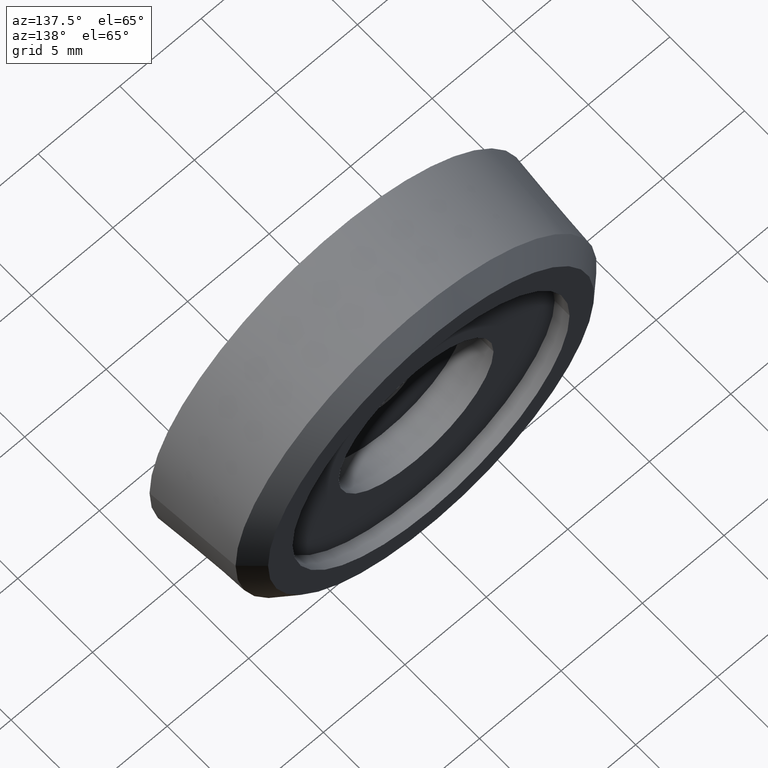
[diagram: clean part render]
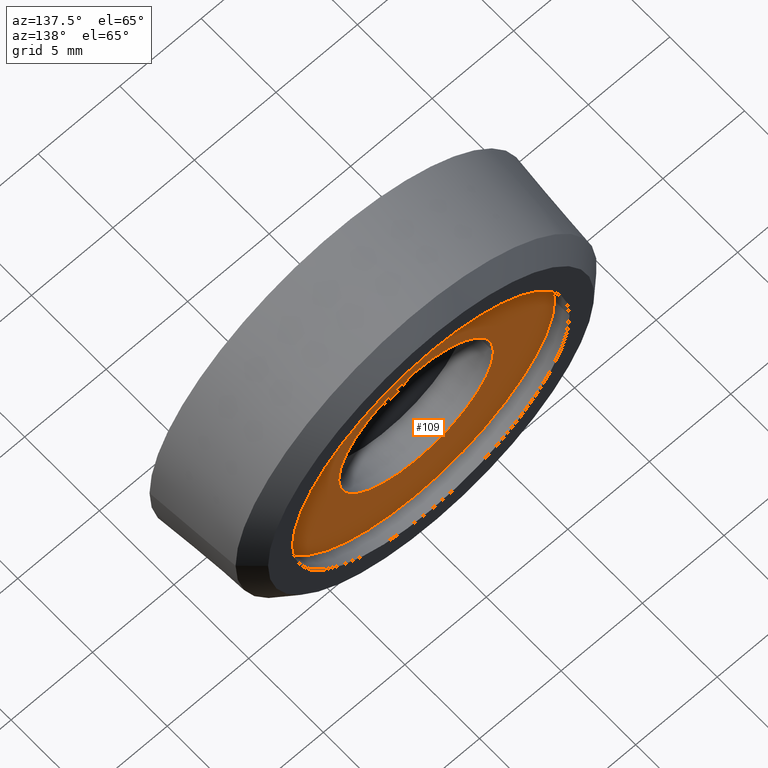
[diagram: same view with one face highlighted and labeled with its STEP entity id]
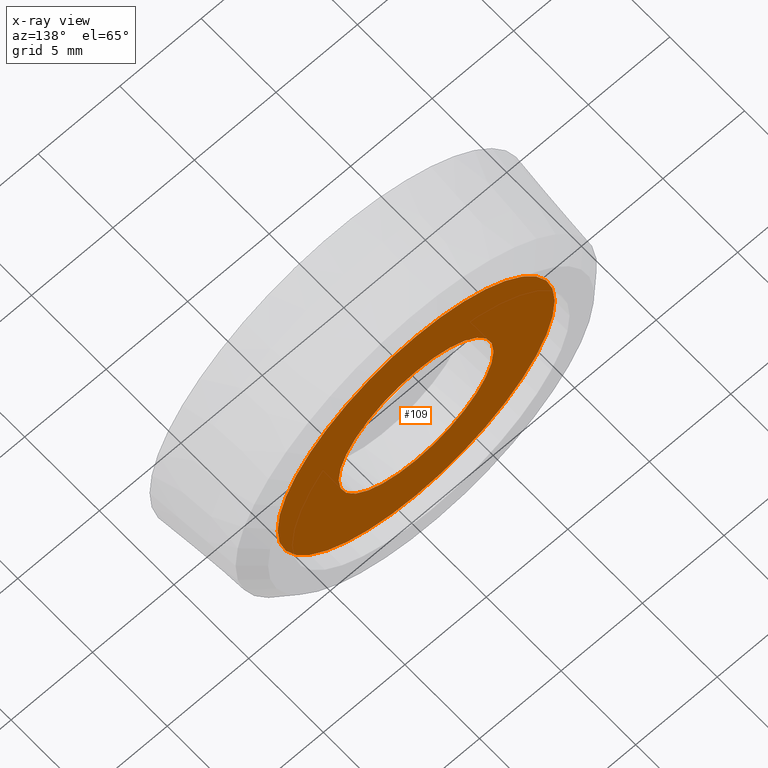
[diagram: x-ray of the same camera — body ghosted, the highlighted face saturated]
A machine part, auxiliary view. The second image highlights one B-rep face of the part: STEP entity #109.
The next image is the same camera in x-ray: the body ghosted, the highlighted face saturated — about 0% of this face is hidden behind the body in this view.
In plain terms, the highlighted planar face has unit normal (0, 1, 0).
Its self-contained STEP definition (entity closure, byte-faithful):
#19=PLANE('',#126);
#26=FACE_BOUND('',#49,.T.);
#35=FACE_OUTER_BOUND('',#48,.T.);
#48=EDGE_LOOP('',(#93));
#49=EDGE_LOOP('',(#94));
#64=CIRCLE('',#127,8.5);
#65=CIRCLE('',#128,4.75);
#73=VERTEX_POINT('',#190);
#74=VERTEX_POINT('',#192);
#82=EDGE_CURVE('',#73,#73,#64,.T.);
#83=EDGE_CURVE('',#74,#74,#65,.T.);
#93=ORIENTED_EDGE('',*,*,#82,.T.);
#94=ORIENTED_EDGE('',*,*,#83,.F.);
#109=ADVANCED_FACE('',(#35,#26),#19,.T.);
#126=AXIS2_PLACEMENT_3D('',#189,#156,#157);
#127=AXIS2_PLACEMENT_3D('',#191,#158,#159);
#128=AXIS2_PLACEMENT_3D('',#193,#160,#161);
#156=DIRECTION('center_axis',(0.,1.,0.));
#157=DIRECTION('ref_axis',(-1.,0.,0.));
#158=DIRECTION('center_axis',(0.,1.,0.));
#159=DIRECTION('ref_axis',(-1.,0.,0.));
#160=DIRECTION('center_axis',(0.,1.,0.));
#161=DIRECTION('ref_axis',(-1.,0.,0.));
#189=CARTESIAN_POINT('Origin',(0.,5.3,0.));
#190=CARTESIAN_POINT('',(-8.5,5.3,0.));
#191=CARTESIAN_POINT('Origin',(0.,5.3,0.));
#192=CARTESIAN_POINT('',(4.75,5.3,-5.81707229594993E-16));
#193=CARTESIAN_POINT('Origin',(0.,5.3,0.));